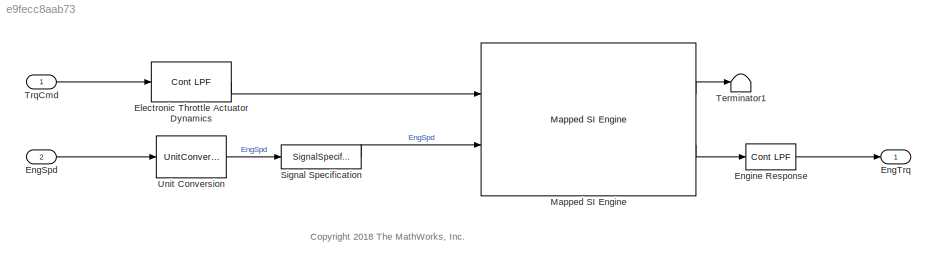
MODEL slx_e9fecc8aab73
KIND model
CONFIG AbsTol = auto
CONFIG EnableMultiTasking = on
CONFIG FixedStep = 0.001
CONFIG MaxStep = auto
CONFIG MinStep = auto
CONFIG RelTol = 1e-3
CONFIG SampleTimeConstraint = Unconstrained
CONFIG Solver = FixedStepAuto
CONFIG SolverName = FixedStepAuto
CONFIG StartTime = 0.0
CONFIG StopTime = inf
WORKSPACE source: MAT-file member
WORKSPACE Cps = 2
BLOCK [Reference] Electronic Throttle Actuator Dynamics  REF=autolibutils/Cont LPF
  Ports = [1, 1]
  SourceBlock = autolibutils/Cont LPF
  SourceProductBaseCode = PW
  SourceProductName = Powertrain Blockset
BLOCK [Inport] EngSpd
  IconDisplay = Port number
  Port = 2
  Unit = rad/s
BLOCK [Outport] EngTrq
  IconDisplay = Port number
BLOCK [Reference] Engine Response  REF=autolibutils/Cont LPF
  Ports = [1, 1]
  SourceBlock = autolibutils/Cont LPF
  SourceProductBaseCode = PW
  SourceProductName = Powertrain Blockset
BLOCK [Reference] Mapped SI Engine  REF=autolibsharedmappedengines/Mapped SI Engine
  Ports = [2, 2]
  SourceBlock = autolibsharedmappedengines/Mapped SI Engine
  SourceProductBaseCode = PW
  SourceProductName = Powertrain Blockset
  SourceType = Mapped SI Engine
BLOCK [SignalSpecification] Signal Specification
  Unit = rpm
BLOCK [Terminator] Terminator1
BLOCK [Inport] TrqCmd
  IconDisplay = Port number
BLOCK [UnitConversion] Unit Conversion
ANNOTATION (root): <copyright redacted>
LINE Electronic Throttle Actuator Dynamics:1 -> Mapped SI Engine:1
LINE EngSpd:1 -> Unit Conversion:1
LINE Engine Response:1 -> EngTrq:1
LINE Mapped SI Engine:1 -> Terminator1:1
LINE Mapped SI Engine:2 -> Engine Response:1
LINE Signal Specification:1 -> Mapped SI Engine:2
LINE TrqCmd:1 -> Electronic Throttle Actuator Dynamics:1
LINE Unit Conversion:1 -> Signal Specification:1
